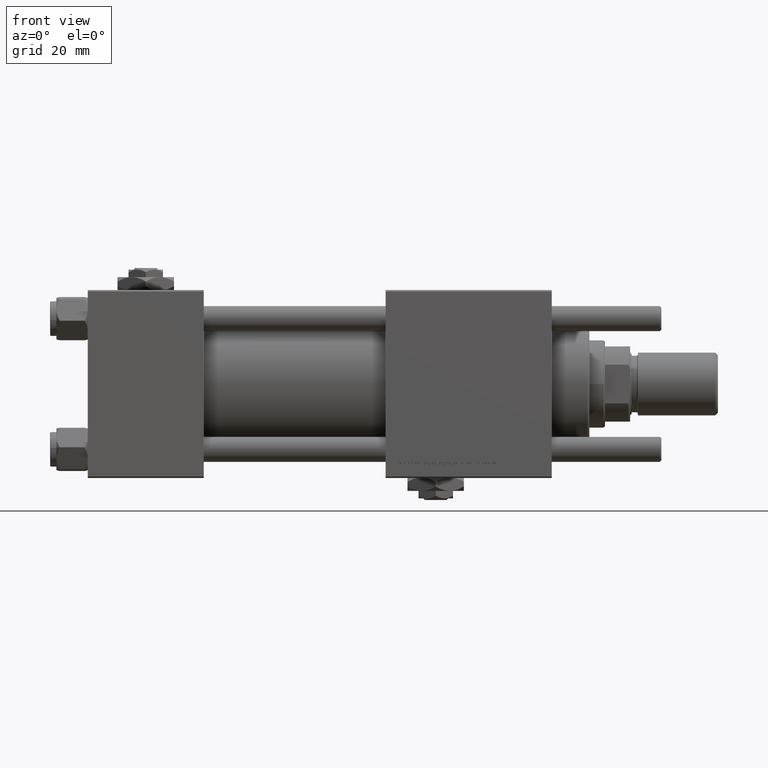
[diagram: clean part render]
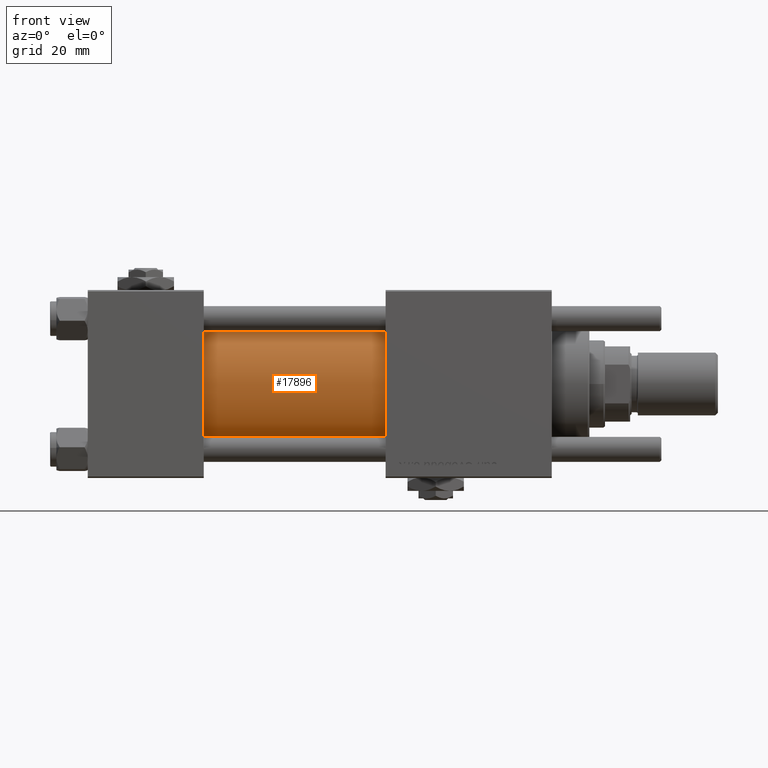
[diagram: same view with one face highlighted and labeled with its STEP entity id]
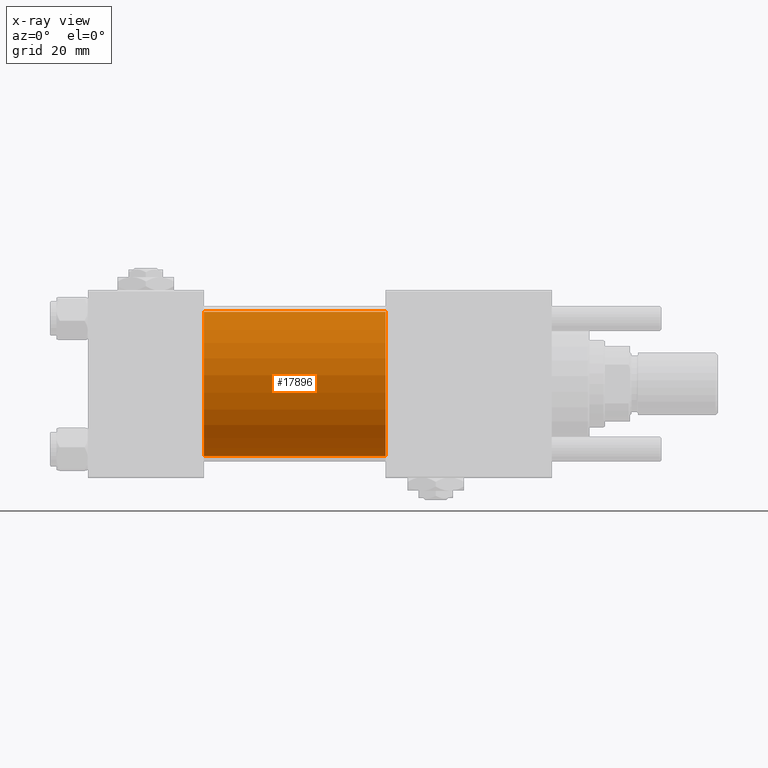
[diagram: x-ray of the same camera — body ghosted, the highlighted face saturated]
A machine part, front view. The second image highlights one B-rep face of the part: STEP entity #17896.
The next image is the same camera in x-ray: the body ghosted, the highlighted face saturated — about 0% of this face is hidden behind the body in this view.
In plain terms, the highlighted cylindrical surface (partial cylindrical patch) has radius 23 mm, axis along (-1, -0, -0).
Its self-contained STEP definition (entity closure, byte-faithful):
#4594 = DIRECTION ( 'NONE',  ( 1.000000000000000000, -0.000000000000000000, 0.000000000000000000 ) ) ;
#6154 = VERTEX_POINT ( 'NONE', #31046 ) ;
#6223 = CARTESIAN_POINT ( 'NONE',  ( 95.00000000000000000, -2.602085213965210642E-15, 23.00000000000000000 ) ) ;
#7095 = CARTESIAN_POINT ( 'NONE',  ( 95.00000000000000000, -2.602085213965210642E-15, 0.000000000000000000 ) ) ;
#11084 = VECTOR ( 'NONE', #46646, 1000.000000000000000 ) ;
#12072 = CYLINDRICAL_SURFACE ( 'NONE', #17400, 23.00000000000000000 ) ;
#16595 = FACE_OUTER_BOUND ( 'NONE', #26512, .T. ) ;
#17400 = AXIS2_PLACEMENT_3D ( 'NONE', #30436, #21699, #39469 ) ;
#17896 = ADVANCED_FACE ( 'NONE', ( #16595 ), #12072, .T. ) ;
#21699 = DIRECTION ( 'NONE',  ( -1.000000000000000000, -0.000000000000000000, -0.000000000000000000 ) ) ;
#23226 = CARTESIAN_POINT ( 'NONE',  ( 37.00000000000000000, -2.602085213965210642E-15, 0.000000000000000000 ) ) ;
#23639 = ORIENTED_EDGE ( 'NONE', *, *, #43245, .T. ) ;
#25046 = EDGE_CURVE ( 'NONE', #48161, #6154, #27062, .T. ) ;
#25416 = ORIENTED_EDGE ( 'NONE', *, *, #25046, .F. ) ;
#26512 = EDGE_LOOP ( 'NONE', ( #33550, #25416, #23639, #32044 ) ) ;
#26626 = EDGE_CURVE ( 'NONE', #43070, #30935, #58858, .T. ) ;
#27062 = CIRCLE ( 'NONE', #29002, 23.00000000000000000 ) ;
#29002 = AXIS2_PLACEMENT_3D ( 'NONE', #7095, #42925, #48334 ) ;
#29169 = CARTESIAN_POINT ( 'NONE',  ( 95.00000000000000000, 2.146024240737012665E-16, -23.00000000000000000 ) ) ;
#30436 = CARTESIAN_POINT ( 'NONE',  ( 95.00000000000000000, -2.602085213965210642E-15, 0.000000000000000000 ) ) ;
#30935 = VERTEX_POINT ( 'NONE', #48077 ) ;
#31046 = CARTESIAN_POINT ( 'NONE',  ( 95.00000000000000000, 2.146024240737012665E-16, -23.00000000000000000 ) ) ;
#32035 = CARTESIAN_POINT ( 'NONE',  ( 95.00000000000000000, -2.602085213965210642E-15, 23.00000000000000000 ) ) ;
#32044 = ORIENTED_EDGE ( 'NONE', *, *, #26626, .T. ) ;
#32343 = DIRECTION ( 'NONE',  ( -1.000000000000000000, -0.000000000000000000, -0.000000000000000000 ) ) ;
#33550 = ORIENTED_EDGE ( 'NONE', *, *, #35227, .F. ) ;
#35227 = EDGE_CURVE ( 'NONE', #6154, #30935, #37610, .T. ) ;
#37610 = LINE ( 'NONE', #29169, #11084 ) ;
#39469 = DIRECTION ( 'NONE',  ( 0.000000000000000000, 0.000000000000000000, 1.000000000000000000 ) ) ;
#42925 = DIRECTION ( 'NONE',  ( 1.000000000000000000, 0.000000000000000000, 0.000000000000000000 ) ) ;
#43070 = VERTEX_POINT ( 'NONE', #47150 ) ;
#43245 = EDGE_CURVE ( 'NONE', #48161, #43070, #54922, .T. ) ;
#46646 = DIRECTION ( 'NONE',  ( -1.000000000000000000, -0.000000000000000000, -0.000000000000000000 ) ) ;
#47150 = CARTESIAN_POINT ( 'NONE',  ( 37.00000000000000000, -2.602085213965210642E-15, 23.00000000000000000 ) ) ;
#48077 = CARTESIAN_POINT ( 'NONE',  ( 37.00000000000000000, 2.146024240737012665E-16, -23.00000000000000000 ) ) ;
#48161 = VERTEX_POINT ( 'NONE', #6223 ) ;
#48334 = DIRECTION ( 'NONE',  ( 0.000000000000000000, 0.000000000000000000, -1.000000000000000000 ) ) ;
#50631 = DIRECTION ( 'NONE',  ( 0.000000000000000000, 0.000000000000000000, 1.000000000000000000 ) ) ;
#54922 = LINE ( 'NONE', #32035, #56475 ) ;
#56475 = VECTOR ( 'NONE', #32343, 1000.000000000000000 ) ;
#57937 = AXIS2_PLACEMENT_3D ( 'NONE', #23226, #4594, #50631 ) ;
#58858 = CIRCLE ( 'NONE', #57937, 23.00000000000000000 ) ;